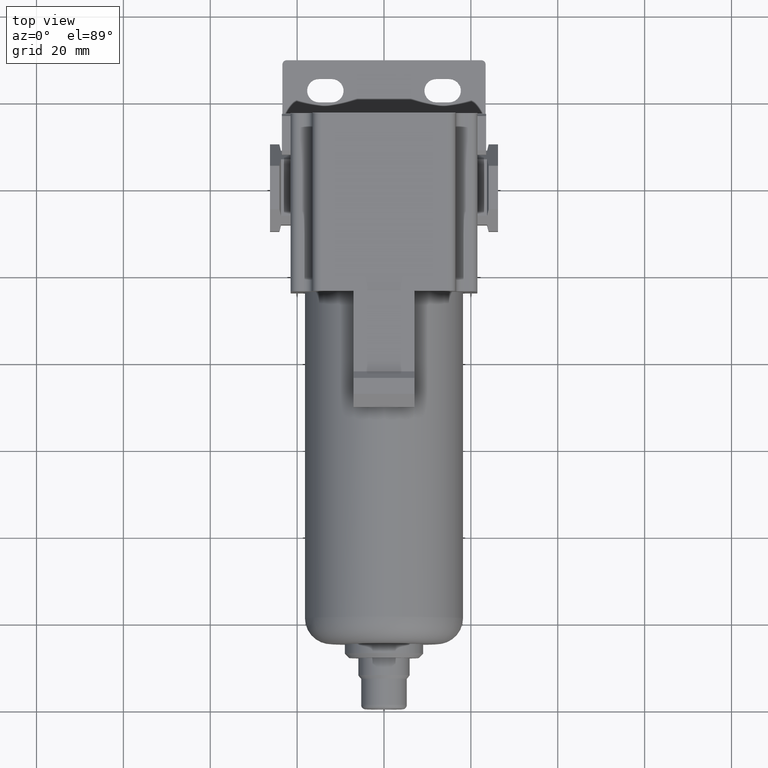
[diagram: clean part render]
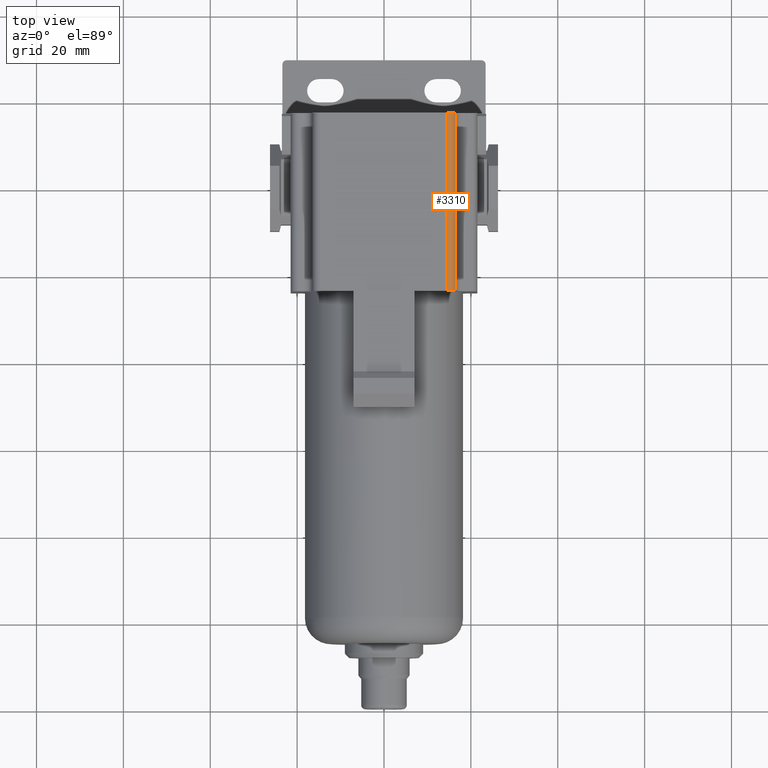
[diagram: same view with one face highlighted and labeled with its STEP entity id]
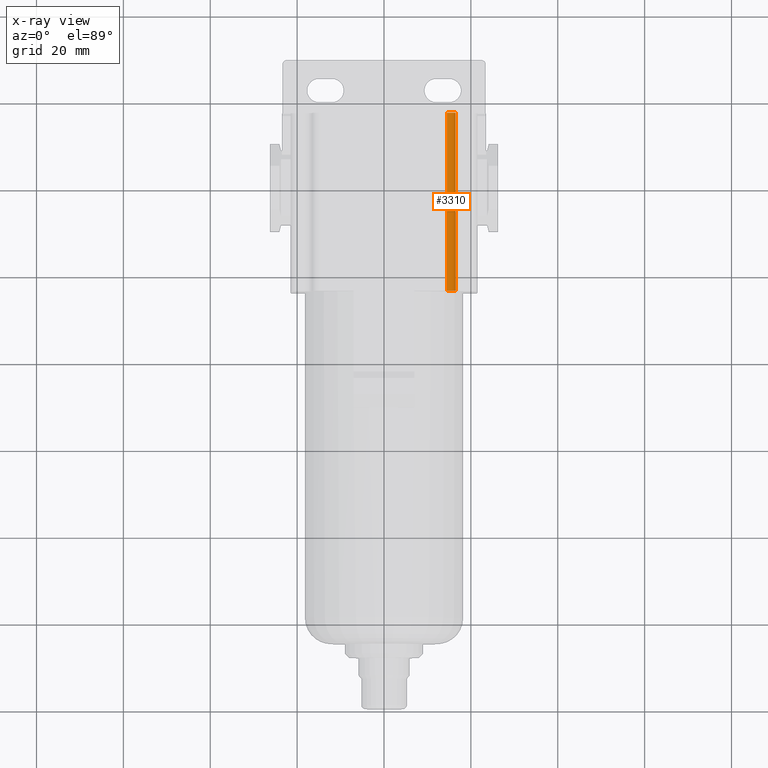
[diagram: x-ray of the same camera — body ghosted, the highlighted face saturated]
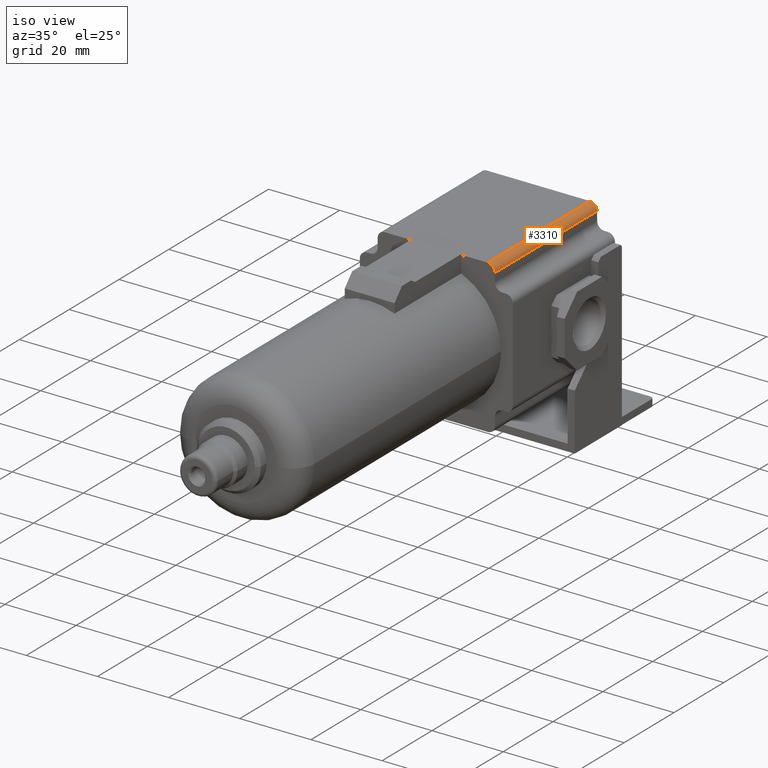
[diagram: same view with one face highlighted and labeled with its STEP entity id]
A machine part, top view. The second image highlights one B-rep face of the part: STEP entity #3310.
The next image is the same camera in x-ray: the body ghosted, the highlighted face saturated — about 0% of this face is hidden behind the body in this view.
A second angle (iso view) of the same face is appended — the face is thin or edge-on in the first view.
In plain terms, the highlighted cylindrical surface (edge-blend (fillet) strip) has radius 2 mm, axis along (0, 1, 0).
Its self-contained STEP definition (entity closure, byte-faithful):
#25 = CYLINDRICAL_SURFACE ( 'NONE', #359, 2.000000000000000000 ) ;
#168 = DIRECTION ( 'NONE',  ( -0.0000000000000000000, 1.000000000000000000, 0.0000000000000000000 ) ) ;
#203 = VERTEX_POINT ( 'NONE', #2962 ) ;
#359 = AXIS2_PLACEMENT_3D ( 'NONE', #1362, #2634, #2675 ) ;
#391 = ORIENTED_EDGE ( 'NONE', *, *, #3632, .F. ) ;
#625 = CARTESIAN_POINT ( 'NONE',  ( 14.49999999999969980, 17.00000000000000000, 19.49999999999970157 ) ) ;
#631 = ORIENTED_EDGE ( 'NONE', *, *, #1851, .F. ) ;
#1138 = VECTOR ( 'NONE', #2512, 1000.000000000000000 ) ;
#1158 = CARTESIAN_POINT ( 'NONE',  ( 16.50000000000000000, 17.00000000000000000, 19.50000000000000000 ) ) ;
#1325 = EDGE_CURVE ( 'NONE', #203, #3082, #3250, .T. ) ;
#1335 = AXIS2_PLACEMENT_3D ( 'NONE', #625, #2562, #3571 ) ;
#1349 = VERTEX_POINT ( 'NONE', #2288 ) ;
#1362 = CARTESIAN_POINT ( 'NONE',  ( 14.49999999999969980, 17.00000000000000000, 19.49999999999970157 ) ) ;
#1672 = ORIENTED_EDGE ( 'NONE', *, *, #1748, .T. ) ;
#1748 = EDGE_CURVE ( 'NONE', #3082, #1349, #1793, .T. ) ;
#1782 = VERTEX_POINT ( 'NONE', #1158 ) ;
#1793 = CIRCLE ( 'NONE', #3808, 2.000000000000001776 ) ;
#1851 = EDGE_CURVE ( 'NONE', #203, #1782, #4184, .T. ) ;
#2144 = CARTESIAN_POINT ( 'NONE',  ( 16.50000000000000000, 17.00000000000000000, 19.50000000000000000 ) ) ;
#2265 = DIRECTION ( 'NONE',  ( -0.0000000000000000000, -1.000000000000000000, -0.0000000000000000000 ) ) ;
#2288 = CARTESIAN_POINT ( 'NONE',  ( 16.50000000000000000, -24.00000000000000000, 19.50000000000000000 ) ) ;
#2512 = DIRECTION ( 'NONE',  ( -0.0000000000000000000, -1.000000000000000000, -0.0000000000000000000 ) ) ;
#2562 = DIRECTION ( 'NONE',  ( -0.0000000000000000000, 1.000000000000000000, 0.0000000000000000000 ) ) ;
#2634 = DIRECTION ( 'NONE',  ( 0.0000000000000000000, 1.000000000000000000, 0.0000000000000000000 ) ) ;
#2675 = DIRECTION ( 'NONE',  ( -0.7071067811866005304, 0.0000000000000000000, -0.7071067811864947261 ) ) ;
#2929 = ORIENTED_EDGE ( 'NONE', *, *, #1325, .T. ) ;
#2944 = FACE_OUTER_BOUND ( 'NONE', #3234, .T. ) ;
#2962 = CARTESIAN_POINT ( 'NONE',  ( 14.50000000000000000, 17.00000000000000000, 21.50000000000000000 ) ) ;
#3037 = VECTOR ( 'NONE', #2265, 1000.000000000000000 ) ;
#3082 = VERTEX_POINT ( 'NONE', #3843 ) ;
#3234 = EDGE_LOOP ( 'NONE', ( #1672, #391, #631, #2929 ) ) ;
#3250 = LINE ( 'NONE', #4258, #3037 ) ;
#3310 = ADVANCED_FACE ( 'NONE', ( #2944 ), #25, .T. ) ;
#3501 = CARTESIAN_POINT ( 'NONE',  ( 14.49999999999969980, -24.00000000000000000, 19.49999999999970157 ) ) ;
#3513 = LINE ( 'NONE', #2144, #1138 ) ;
#3571 = DIRECTION ( 'NONE',  ( 1.000000000000000000, 0.0000000000000000000, 0.0000000000000000000 ) ) ;
#3632 = EDGE_CURVE ( 'NONE', #1782, #1349, #3513, .T. ) ;
#3808 = AXIS2_PLACEMENT_3D ( 'NONE', #3501, #168, #4121 ) ;
#3843 = CARTESIAN_POINT ( 'NONE',  ( 14.50000000000000000, -24.00000000000000000, 21.50000000000000000 ) ) ;
#4121 = DIRECTION ( 'NONE',  ( 1.000000000000000000, 0.0000000000000000000, 0.0000000000000000000 ) ) ;
#4184 = CIRCLE ( 'NONE', #1335, 2.000000000000001776 ) ;
#4258 = CARTESIAN_POINT ( 'NONE',  ( 14.50000000000000000, 17.00000000000000000, 21.50000000000000000 ) ) ;